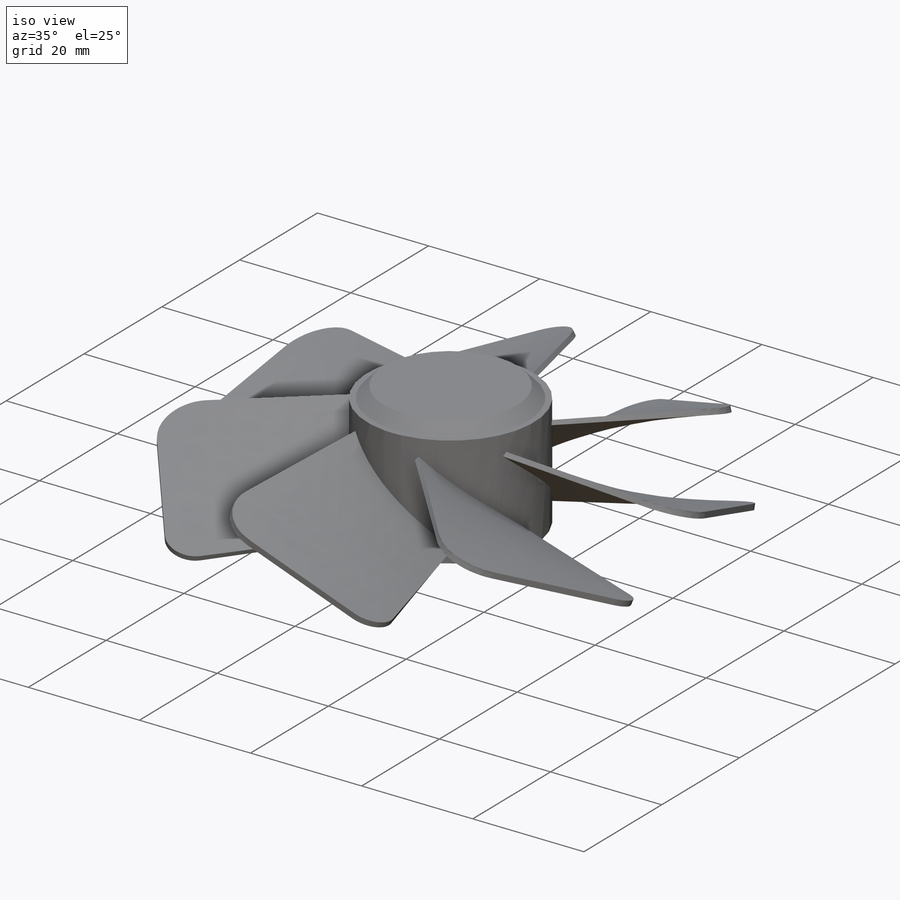
[diagram: iso view]
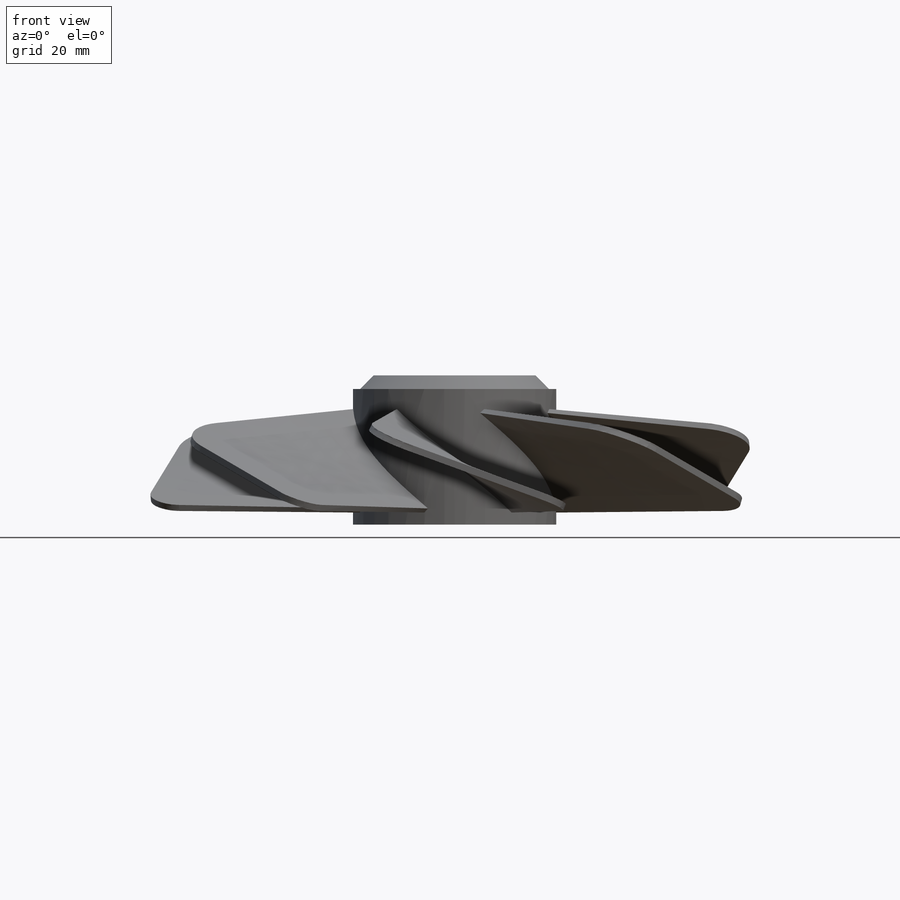
[diagram: front view]
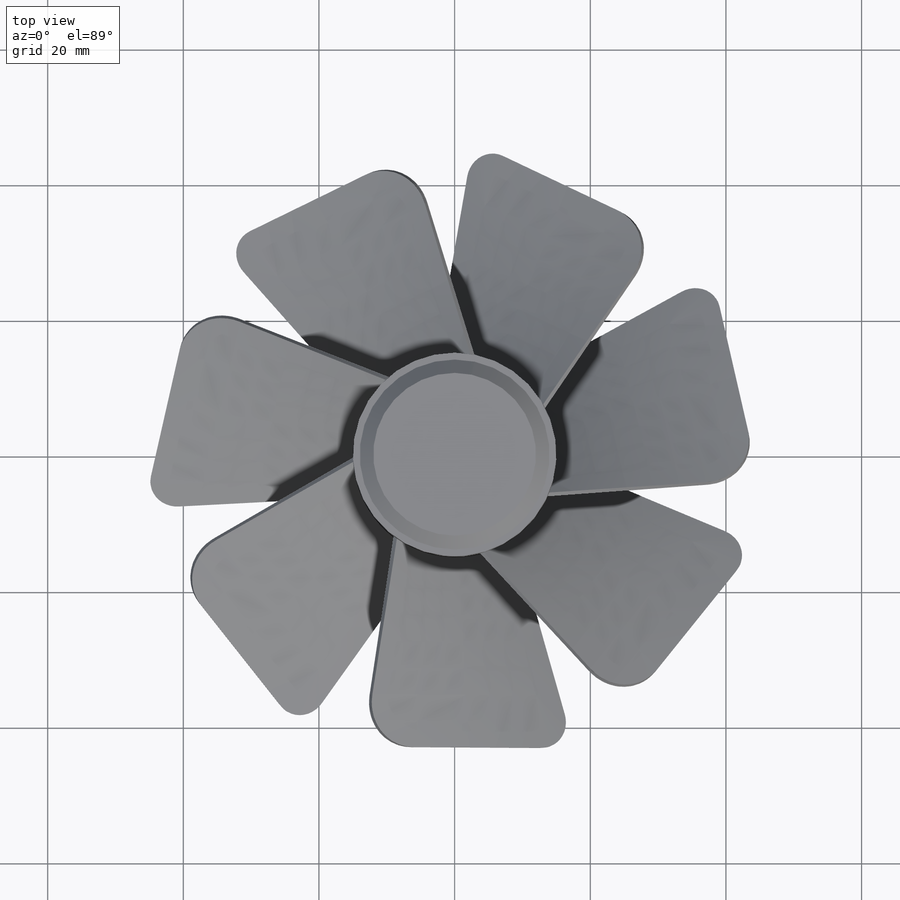
[diagram: top view]
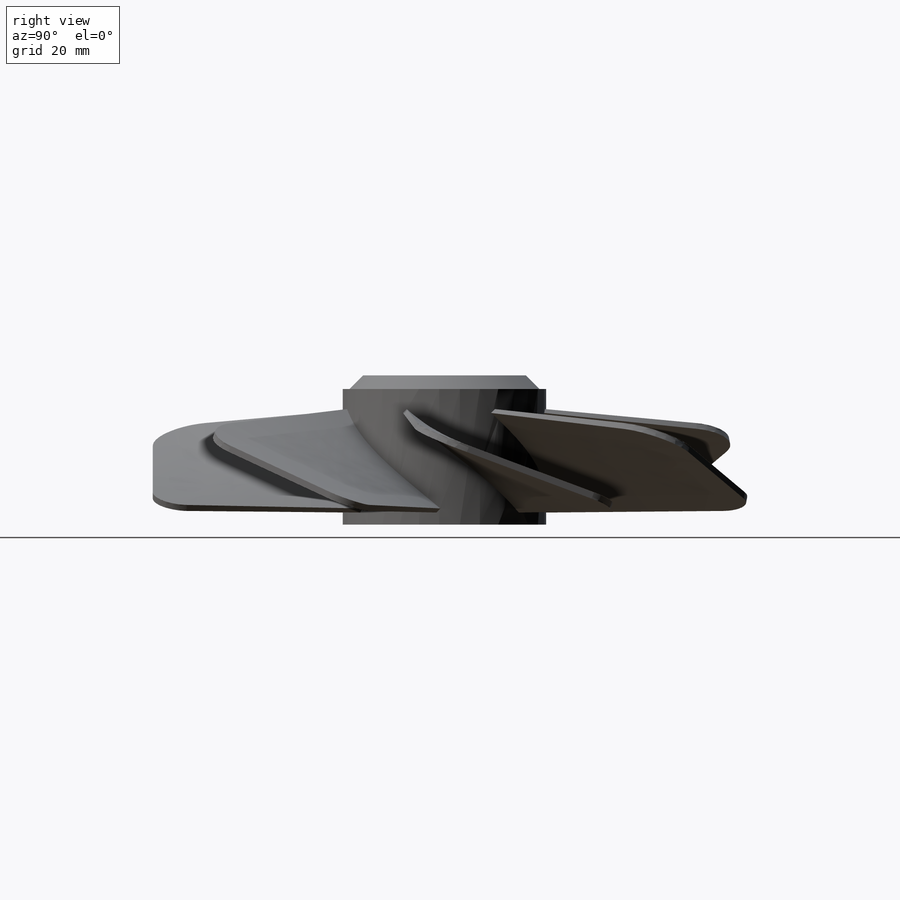
[diagram: right view]
SOLIDWORKS PART (.sldprt)
format: sldprt  version: not decoded by parser v0  size: 418,816 bytes
history: native  units: mm
features: sketch x5, extrude x2, fillet x2, material x1, plane x1, pattern_circular x1, chamfer x1, cut_extrude x1 (+13 scaffold rows collapsed)
feature tree (27):
  scaffold x13  (default folders/planes/origin — collapsed)
  material  "Material <not specified>"
  sketch  "Sketch1"  dims[D1=~34.016901mm]
  extrude  "Boss-Extrude1"  Depth=20mm
  sketch  "Sketch7"  dims[D1=0.8mm]
  plane  "Plane1"  Offset=43mm
  sketch  "Sketch8"  dims[c1.D1=~32.014703mm c2.D1=20.0deg]
  pattern_circular  "CirPattern1"  Count=7 Angle=51.428571deg
  fillet  "Fillet1"  Radius=7mm
  fillet  "Fillet2"  Radius=4mm
  sketch  "Sketch9"  dims[D1=~12.686514mm]
  extrude  "Boss-Extrude2"  Depth=2mm
  chamfer  "Chamfer1"  Distance=2mm Angle=45deg
  sketch  "Sketch10"  dims[D1=10.0mm]
  cut_extrude  "Cut-Extrude1"  Depth=5mm
decode coverage: 12 of 12 modeling features carry decoded parameters
note: ~ marks probable driven/reference dimensions
note: suppression state not decoded; provenance and decode notes live in map.json
